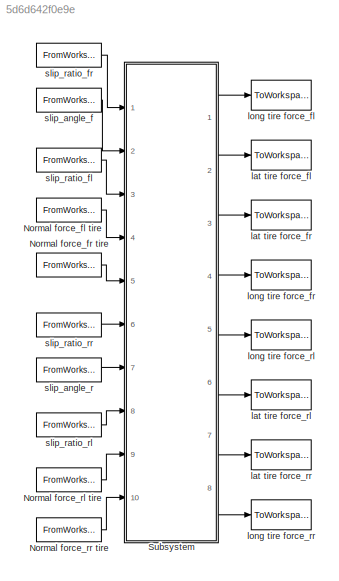
MODEL slx_5d6d642f0e9e
KIND model
CONFIG AbsTol = auto
CONFIG FixedStep = auto
CONFIG MaxStep = auto
CONFIG MinStep = auto
CONFIG RelTol = 1e-3
CONFIG SampleTimeConstraint = Unconstrained
CONFIG Solver = ode3
CONFIG SolverMode = Auto
CONFIG SolverName = ode3
CONFIG StartTime = 0
CONFIG StopTime = 5
BLOCK [FromWorkspace] Normal force_fl tire
  SampleTime = 0
  VariableName = Fz_fl
  ZeroCross = on
BLOCK [FromWorkspace] Normal force_fr tire
  SampleTime = 0
  VariableName = Fz_fr
  ZeroCross = on
BLOCK [FromWorkspace] Normal force_rl tire
  SampleTime = 0
  VariableName = Fz_rl
  ZeroCross = on
BLOCK [FromWorkspace] Normal force_rr tire
  SampleTime = 0
  VariableName = Fz_rr
  ZeroCross = on
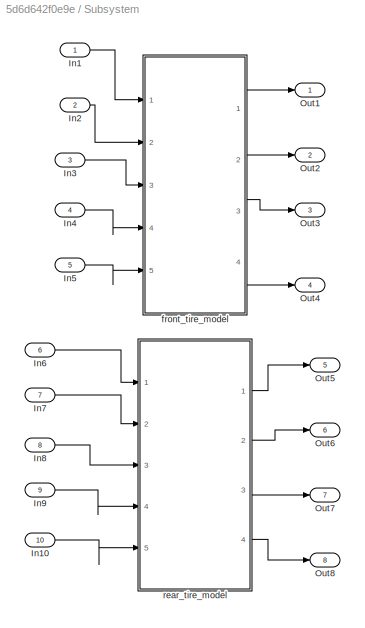
BLOCK [SubSystem] Subsystem
  Ports = [10, 8]
  RequestExecContextInheritance = off
BLOCK [Inport] Subsystem/In1
  IconDisplay = Port number
BLOCK [Inport] Subsystem/In10
  IconDisplay = Port number
  Port = 10
BLOCK [Inport] Subsystem/In2
  IconDisplay = Port number
  Port = 2
BLOCK [Inport] Subsystem/In3
  IconDisplay = Port number
  Port = 3
BLOCK [Inport] Subsystem/In4
  IconDisplay = Port number
  Port = 4
BLOCK [Inport] Subsystem/In5
  IconDisplay = Port number
  Port = 5
BLOCK [Inport] Subsystem/In6
  IconDisplay = Port number
  Port = 6
BLOCK [Inport] Subsystem/In7
  IconDisplay = Port number
  Port = 7
BLOCK [Inport] Subsystem/In8
  IconDisplay = Port number
  Port = 8
BLOCK [Inport] Subsystem/In9
  IconDisplay = Port number
  Port = 9
BLOCK [Outport] Subsystem/Out1
  IconDisplay = Port number
BLOCK [Outport] Subsystem/Out2
  IconDisplay = Port number
  Port = 2
BLOCK [Outport] Subsystem/Out3
  IconDisplay = Port number
  Port = 3
BLOCK [Outport] Subsystem/Out4
  IconDisplay = Port number
  Port = 4
BLOCK [Outport] Subsystem/Out5
  IconDisplay = Port number
  Port = 5
BLOCK [Outport] Subsystem/Out6
  IconDisplay = Port number
  Port = 6
BLOCK [Outport] Subsystem/Out7
  IconDisplay = Port number
  Port = 7
BLOCK [Outport] Subsystem/Out8
  IconDisplay = Port number
  Port = 8
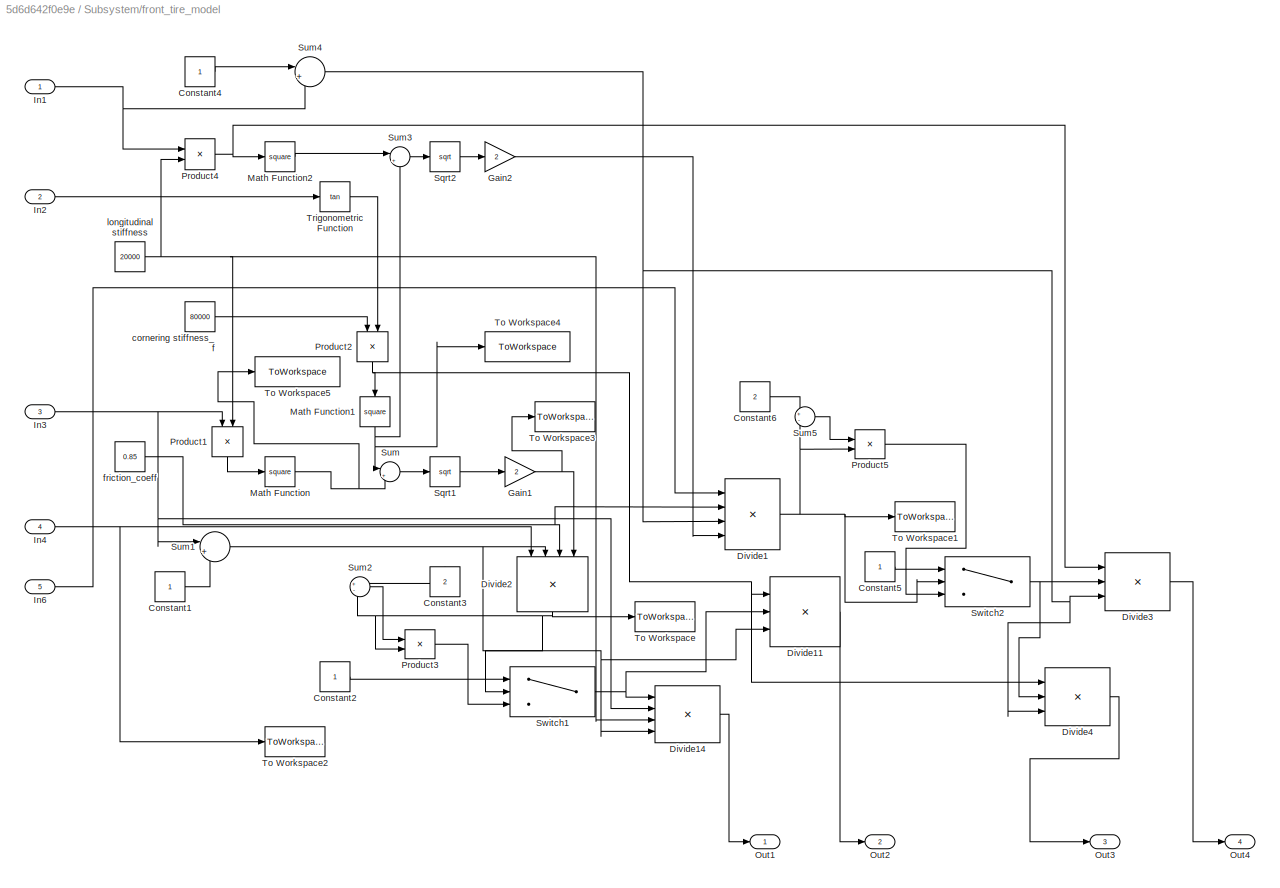
BLOCK [SubSystem] Subsystem/front_tire_model
  Ports = [5, 4]
  RequestExecContextInheritance = off
BLOCK [Constant] Subsystem/front_tire_model/Constant1
BLOCK [Constant] Subsystem/front_tire_model/Constant2
BLOCK [Constant] Subsystem/front_tire_model/Constant3
  Value = 2
BLOCK [Constant] Subsystem/front_tire_model/Constant4
BLOCK [Constant] Subsystem/front_tire_model/Constant5
BLOCK [Constant] Subsystem/front_tire_model/Constant6
  Value = 2
BLOCK [Product] Subsystem/front_tire_model/Divide1
  InputSameDT = off
  Inputs = ***/
  OutDataTypeStr = Inherit: Inherit via internal rule
  Ports = [4, 1]
  RndMeth = Floor
  SaturateOnIntegerOverflow = off
BLOCK [Product] Subsystem/front_tire_model/Divide11
  InputSameDT = off
  Inputs = **/
  OutDataTypeStr = Inherit: Inherit via internal rule
  Ports = [3, 1]
  RndMeth = Floor
  SaturateOnIntegerOverflow = off
BLOCK [Product] Subsystem/front_tire_model/Divide14
  InputSameDT = off
  Inputs = ***/
  OutDataTypeStr = Inherit: Inherit via internal rule
  Ports = [4, 1]
  RndMeth = Floor
  SaturateOnIntegerOverflow = off
BLOCK [Product] Subsystem/front_tire_model/Divide2
  InputSameDT = off
  Inputs = ***/
  OutDataTypeStr = Inherit: Inherit via internal rule
  Ports = [4, 1]
  RndMeth = Floor
  SaturateOnIntegerOverflow = off
BLOCK [Product] Subsystem/front_tire_model/Divide3
  InputSameDT = off
  Inputs = **/
  OutDataTypeStr = Inherit: Inherit via internal rule
  Ports = [3, 1]
  RndMeth = Floor
  SaturateOnIntegerOverflow = off
BLOCK [Product] Subsystem/front_tire_model/Divide4
  InputSameDT = off
  Inputs = **/
  OutDataTypeStr = Inherit: Inherit via internal rule
  Ports = [3, 1]
  RndMeth = Floor
  SaturateOnIntegerOverflow = off
BLOCK [Gain] Subsystem/front_tire_model/Gain1
  Gain = 2
  OutDataTypeStr = Inherit: Inherit via internal rule
  ParamDataTypeStr = Inherit: Inherit via internal rule
  SaturateOnIntegerOverflow = off
BLOCK [Gain] Subsystem/front_tire_model/Gain2
  Gain = 2
  OutDataTypeStr = Inherit: Inherit via internal rule
  ParamDataTypeStr = Inherit: Inherit via internal rule
  SaturateOnIntegerOverflow = off
BLOCK [Inport] Subsystem/front_tire_model/In1
  IconDisplay = Port number
BLOCK [Inport] Subsystem/front_tire_model/In2
  IconDisplay = Port number
  Port = 2
BLOCK [Inport] Subsystem/front_tire_model/In3
  IconDisplay = Port number
  Port = 3
BLOCK [Inport] Subsystem/front_tire_model/In4
  IconDisplay = Port number
  Port = 4
BLOCK [Inport] Subsystem/front_tire_model/In6
  IconDisplay = Port number
  Port = 5
BLOCK [Math] Subsystem/front_tire_model/Math Function
  Operator = square
  Ports = [1, 1]
BLOCK [Math] Subsystem/front_tire_model/Math Function1
  Operator = square
  Ports = [1, 1]
BLOCK [Math] Subsystem/front_tire_model/Math Function2
  Operator = square
  Ports = [1, 1]
BLOCK [Outport] Subsystem/front_tire_model/Out1
  IconDisplay = Port number
BLOCK [Outport] Subsystem/front_tire_model/Out2
  IconDisplay = Port number
  Port = 2
BLOCK [Outport] Subsystem/front_tire_model/Out3
  IconDisplay = Port number
  Port = 3
BLOCK [Outport] Subsystem/front_tire_model/Out4
  IconDisplay = Port number
  Port = 4
BLOCK [Product] Subsystem/front_tire_model/Product1
  InputSameDT = off
  OutDataTypeStr = Inherit: Inherit via internal rule
  Ports = [2, 1]
  RndMeth = Floor
  SaturateOnIntegerOverflow = off
BLOCK [Product] Subsystem/front_tire_model/Product2
  InputSameDT = off
  OutDataTypeStr = Inherit: Inherit via internal rule
  Ports = [2, 1]
  RndMeth = Floor
  SaturateOnIntegerOverflow = off
BLOCK [Product] Subsystem/front_tire_model/Product3
  InputSameDT = off
  OutDataTypeStr = Inherit: Inherit via internal rule
  Ports = [2, 1]
  RndMeth = Floor
  SaturateOnIntegerOverflow = off
BLOCK [Product] Subsystem/front_tire_model/Product4
  InputSameDT = off
  OutDataTypeStr = Inherit: Inherit via internal rule
  Ports = [2, 1]
  RndMeth = Floor
  SaturateOnIntegerOverflow = off
BLOCK [Product] Subsystem/front_tire_model/Product5
  InputSameDT = off
  OutDataTypeStr = Inherit: Inherit via internal rule
  Ports = [2, 1]
  RndMeth = Floor
  SaturateOnIntegerOverflow = off
BLOCK [Sqrt] Subsystem/front_tire_model/Sqrt1
BLOCK [Sqrt] Subsystem/front_tire_model/Sqrt2
BLOCK [Sum] Subsystem/front_tire_model/Sum
  IconShape = round
  InputSameDT = off
  Inputs = |++
  OutDataTypeStr = Inherit: Inherit via internal rule
  Ports = [2, 1]
  SaturateOnIntegerOverflow = off
BLOCK [Sum] Subsystem/front_tire_model/Sum1
  IconShape = round
  InputSameDT = off
  Inputs = |++
  OutDataTypeStr = Inherit: Inherit via internal rule
  Ports = [2, 1]
  SaturateOnIntegerOverflow = off
BLOCK [Sum] Subsystem/front_tire_model/Sum2
  IconShape = round
  InputSameDT = off
  Inputs = +-
  OutDataTypeStr = Inherit: Inherit via internal rule
  Ports = [2, 1]
  SaturateOnIntegerOverflow = off
BLOCK [Sum] Subsystem/front_tire_model/Sum3
  IconShape = round
  InputSameDT = off
  Inputs = |++
  OutDataTypeStr = Inherit: Inherit via internal rule
  Ports = [2, 1]
  SaturateOnIntegerOverflow = off
BLOCK [Sum] Subsystem/front_tire_model/Sum4
  IconShape = round
  InputSameDT = off
  Inputs = |++
  OutDataTypeStr = Inherit: Inherit via internal rule
  Ports = [2, 1]
  SaturateOnIntegerOverflow = off
BLOCK [Sum] Subsystem/front_tire_model/Sum5
  IconShape = round
  InputSameDT = off
  Inputs = +-
  OutDataTypeStr = Inherit: Inherit via internal rule
  Ports = [2, 1]
  SaturateOnIntegerOverflow = off
BLOCK [Switch] Subsystem/front_tire_model/Switch1
  InputSameDT = off
  SaturateOnIntegerOverflow = off
  Threshold = 1
BLOCK [Switch] Subsystem/front_tire_model/Switch2
  InputSameDT = off
  SaturateOnIntegerOverflow = off
  Threshold = 1
BLOCK [ToWorkspace] Subsystem/front_tire_model/To Workspace
  FixptAsFi = on
  MaxDataPoints = inf
  Ports = [1]
  SampleTime = -1
  Save2DSignal = 3-D array (concatenate along third dimension)
  SaveFormat = Timeseries
  VariableName = lambda_fl
BLOCK [ToWorkspace] Subsystem/front_tire_model/To Workspace1
  FixptAsFi = on
  MaxDataPoints = inf
  Ports = [1]
  SampleTime = -1
  Save2DSignal = 3-D array (concatenate along third dimension)
  SaveFormat = Timeseries
  VariableName = lambda_fr
BLOCK [ToWorkspace] Subsystem/front_tire_model/To Workspace2
  FixptAsFi = on
  MaxDataPoints = inf
  Ports = [1]
  SampleTime = -1
  Save2DSignal = 3-D array (concatenate along third dimension)
  SaveFormat = Timeseries
  VariableName = check_fzfl
BLOCK [ToWorkspace] Subsystem/front_tire_model/To Workspace3
  FixptAsFi = on
  MaxDataPoints = inf
  Ports = [1]
  SampleTime = -1
  Save2DSignal = 3-D array (concatenate along third dimension)
  SaveFormat = Timeseries
  VariableName = check_deno
BLOCK [ToWorkspace] Subsystem/front_tire_model/To Workspace4
  FixptAsFi = on
  MaxDataPoints = inf
  Ports = [1]
  SampleTime = -1
  Save2DSignal = 3-D array (concatenate along third dimension)
  SaveFormat = Timeseries
  VariableName = check_deno_st
BLOCK [ToWorkspace] Subsystem/front_tire_model/To Workspace5
  FixptAsFi = on
  MaxDataPoints = inf
  Ports = [1]
  SampleTime = -1
  Save2DSignal = 3-D array (concatenate along third dimension)
  SaveFormat = Timeseries
  VariableName = check_deno_ft
BLOCK [Trigonometry] Subsystem/front_tire_model/Trigonometric Function
  Operator = tan
  Ports = [1, 1]
BLOCK [Constant] Subsystem/front_tire_model/cornering stiffness_f
  Value = 80000
BLOCK [Constant] Subsystem/front_tire_model/friction_coeff
  Value = 0.85
BLOCK [Constant] Subsystem/front_tire_model/longitudinal stiffness
  Value = 20000
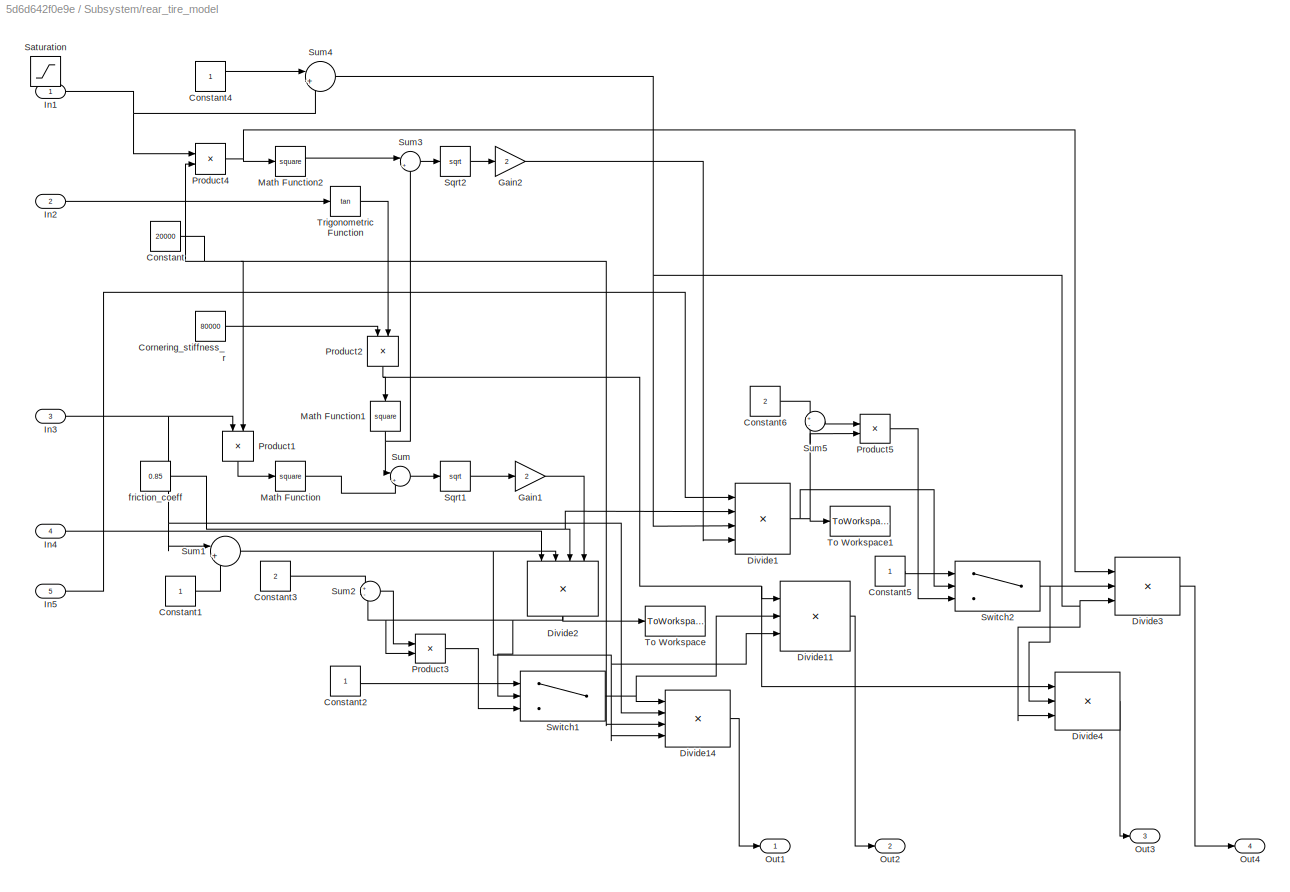
BLOCK [SubSystem] Subsystem/rear_tire_model
  Ports = [5, 4]
  RequestExecContextInheritance = off
BLOCK [Constant] Subsystem/rear_tire_model/Constant
  Value = 20000
BLOCK [Constant] Subsystem/rear_tire_model/Constant1
BLOCK [Constant] Subsystem/rear_tire_model/Constant2
BLOCK [Constant] Subsystem/rear_tire_model/Constant3
  Value = 2
BLOCK [Constant] Subsystem/rear_tire_model/Constant4
BLOCK [Constant] Subsystem/rear_tire_model/Constant5
BLOCK [Constant] Subsystem/rear_tire_model/Constant6
  Value = 2
BLOCK [Constant] Subsystem/rear_tire_model/Cornering_stiffness_r
  Value = 80000
BLOCK [Product] Subsystem/rear_tire_model/Divide1
  InputSameDT = off
  Inputs = ***/
  OutDataTypeStr = Inherit: Inherit via internal rule
  Ports = [4, 1]
  RndMeth = Floor
  SaturateOnIntegerOverflow = off
BLOCK [Product] Subsystem/rear_tire_model/Divide11
  InputSameDT = off
  Inputs = **/
  OutDataTypeStr = Inherit: Inherit via internal rule
  Ports = [3, 1]
  RndMeth = Floor
  SaturateOnIntegerOverflow = off
BLOCK [Product] Subsystem/rear_tire_model/Divide14
  InputSameDT = off
  Inputs = ***/
  OutDataTypeStr = Inherit: Inherit via internal rule
  Ports = [4, 1]
  RndMeth = Floor
  SaturateOnIntegerOverflow = off
BLOCK [Product] Subsystem/rear_tire_model/Divide2
  InputSameDT = off
  Inputs = ***/
  OutDataTypeStr = Inherit: Inherit via internal rule
  Ports = [4, 1]
  RndMeth = Floor
  SaturateOnIntegerOverflow = off
BLOCK [Product] Subsystem/rear_tire_model/Divide3
  InputSameDT = off
  Inputs = **/
  OutDataTypeStr = Inherit: Inherit via internal rule
  Ports = [3, 1]
  RndMeth = Floor
  SaturateOnIntegerOverflow = off
BLOCK [Product] Subsystem/rear_tire_model/Divide4
  InputSameDT = off
  Inputs = **/
  OutDataTypeStr = Inherit: Inherit via internal rule
  Ports = [3, 1]
  RndMeth = Floor
  SaturateOnIntegerOverflow = off
BLOCK [Gain] Subsystem/rear_tire_model/Gain1
  Gain = 2
  OutDataTypeStr = Inherit: Inherit via internal rule
  ParamDataTypeStr = Inherit: Inherit via internal rule
  SaturateOnIntegerOverflow = off
BLOCK [Gain] Subsystem/rear_tire_model/Gain2
  Gain = 2
  OutDataTypeStr = Inherit: Inherit via internal rule
  ParamDataTypeStr = Inherit: Inherit via internal rule
  SaturateOnIntegerOverflow = off
BLOCK [Inport] Subsystem/rear_tire_model/In1
  IconDisplay = Port number
BLOCK [Inport] Subsystem/rear_tire_model/In2
  IconDisplay = Port number
  Port = 2
BLOCK [Inport] Subsystem/rear_tire_model/In3
  IconDisplay = Port number
  Port = 3
BLOCK [Inport] Subsystem/rear_tire_model/In4
  IconDisplay = Port number
  Port = 4
BLOCK [Inport] Subsystem/rear_tire_model/In5
  IconDisplay = Port number
  Port = 5
BLOCK [Math] Subsystem/rear_tire_model/Math Function
  Operator = square
  Ports = [1, 1]
BLOCK [Math] Subsystem/rear_tire_model/Math Function1
  Operator = square
  Ports = [1, 1]
BLOCK [Math] Subsystem/rear_tire_model/Math Function2
  Operator = square
  Ports = [1, 1]
BLOCK [Outport] Subsystem/rear_tire_model/Out1
  IconDisplay = Port number
BLOCK [Outport] Subsystem/rear_tire_model/Out2
  IconDisplay = Port number
  Port = 2
BLOCK [Outport] Subsystem/rear_tire_model/Out3
  IconDisplay = Port number
  Port = 3
BLOCK [Outport] Subsystem/rear_tire_model/Out4
  IconDisplay = Port number
  Port = 4
BLOCK [Product] Subsystem/rear_tire_model/Product1
  InputSameDT = off
  OutDataTypeStr = Inherit: Inherit via internal rule
  Ports = [2, 1]
  RndMeth = Floor
  SaturateOnIntegerOverflow = off
BLOCK [Product] Subsystem/rear_tire_model/Product2
  InputSameDT = off
  OutDataTypeStr = Inherit: Inherit via internal rule
  Ports = [2, 1]
  RndMeth = Floor
  SaturateOnIntegerOverflow = off
BLOCK [Product] Subsystem/rear_tire_model/Product3
  InputSameDT = off
  OutDataTypeStr = Inherit: Inherit via internal rule
  Ports = [2, 1]
  RndMeth = Floor
  SaturateOnIntegerOverflow = off
BLOCK [Product] Subsystem/rear_tire_model/Product4
  InputSameDT = off
  OutDataTypeStr = Inherit: Inherit via internal rule
  Ports = [2, 1]
  RndMeth = Floor
  SaturateOnIntegerOverflow = off
BLOCK [Product] Subsystem/rear_tire_model/Product5
  InputSameDT = off
  OutDataTypeStr = Inherit: Inherit via internal rule
  Ports = [2, 1]
  RndMeth = Floor
  SaturateOnIntegerOverflow = off
BLOCK [Saturate] Subsystem/rear_tire_model/Saturation
  InputPortMap = u0
  LowerLimit = 0
  Ports = [1, 1]
  UpperLimit = 135
BLOCK [Sqrt] Subsystem/rear_tire_model/Sqrt1
BLOCK [Sqrt] Subsystem/rear_tire_model/Sqrt2
BLOCK [Sum] Subsystem/rear_tire_model/Sum
  IconShape = round
  InputSameDT = off
  Inputs = |++
  OutDataTypeStr = Inherit: Inherit via internal rule
  Ports = [2, 1]
  SaturateOnIntegerOverflow = off
BLOCK [Sum] Subsystem/rear_tire_model/Sum1
  IconShape = round
  InputSameDT = off
  Inputs = |++
  OutDataTypeStr = Inherit: Inherit via internal rule
  Ports = [2, 1]
  SaturateOnIntegerOverflow = off
BLOCK [Sum] Subsystem/rear_tire_model/Sum2
  IconShape = round
  InputSameDT = off
  Inputs = +-
  OutDataTypeStr = Inherit: Inherit via internal rule
  Ports = [2, 1]
  SaturateOnIntegerOverflow = off
BLOCK [Sum] Subsystem/rear_tire_model/Sum3
  IconShape = round
  InputSameDT = off
  Inputs = |++
  OutDataTypeStr = Inherit: Inherit via internal rule
  Ports = [2, 1]
  SaturateOnIntegerOverflow = off
BLOCK [Sum] Subsystem/rear_tire_model/Sum4
  IconShape = round
  InputSameDT = off
  Inputs = |++
  OutDataTypeStr = Inherit: Inherit via internal rule
  Ports = [2, 1]
  SaturateOnIntegerOverflow = off
BLOCK [Sum] Subsystem/rear_tire_model/Sum5
  IconShape = round
  InputSameDT = off
  Inputs = +-
  OutDataTypeStr = Inherit: Inherit via internal rule
  Ports = [2, 1]
  SaturateOnIntegerOverflow = off
BLOCK [Switch] Subsystem/rear_tire_model/Switch1
  InputSameDT = off
  SaturateOnIntegerOverflow = off
  Threshold = 1
BLOCK [Switch] Subsystem/rear_tire_model/Switch2
  InputSameDT = off
  SaturateOnIntegerOverflow = off
  Threshold = 1
BLOCK [ToWorkspace] Subsystem/rear_tire_model/To Workspace
  FixptAsFi = on
  MaxDataPoints = inf
  Ports = [1]
  SampleTime = -1
  Save2DSignal = 3-D array (concatenate along third dimension)
  SaveFormat = Timeseries
  VariableName = lambda_rl
BLOCK [ToWorkspace] Subsystem/rear_tire_model/To Workspace1
  FixptAsFi = on
  MaxDataPoints = inf
  Ports = [1]
  SampleTime = -1
  Save2DSignal = 3-D array (concatenate along third dimension)
  SaveFormat = Timeseries
  VariableName = lambda_rr
BLOCK [Trigonometry] Subsystem/rear_tire_model/Trigonometric Function
  Operator = tan
  Ports = [1, 1]
BLOCK [Constant] Subsystem/rear_tire_model/friction_coeff
  Value = 0.85
BLOCK [ToWorkspace] lat tire force_fl
  FixptAsFi = on
  MaxDataPoints = inf
  Ports = [1]
  SampleTime = -1
  Save2DSignal = 3-D array (concatenate along third dimension)
  SaveFormat = Timeseries
  VariableName = F_yfl
BLOCK [ToWorkspace] lat tire force_fr
  FixptAsFi = on
  MaxDataPoints = inf
  Ports = [1]
  SampleTime = -1
  Save2DSignal = 3-D array (concatenate along third dimension)
  SaveFormat = Timeseries
  VariableName = F_yfr
BLOCK [ToWorkspace] lat tire force_rl
  FixptAsFi = on
  MaxDataPoints = inf
  Ports = [1]
  SampleTime = -1
  Save2DSignal = 3-D array (concatenate along third dimension)
  SaveFormat = Timeseries
  VariableName = F_yrl
BLOCK [ToWorkspace] lat tire force_rr
  FixptAsFi = on
  MaxDataPoints = inf
  Ports = [1]
  SampleTime = -1
  Save2DSignal = 3-D array (concatenate along third dimension)
  SaveFormat = Timeseries
  VariableName = F_yrr
BLOCK [ToWorkspace] long tire force_fl
  FixptAsFi = on
  MaxDataPoints = inf
  Ports = [1]
  SampleTime = -1
  Save2DSignal = 3-D array (concatenate along third dimension)
  SaveFormat = Timeseries
  VariableName = F_xfl
BLOCK [ToWorkspace] long tire force_fr
  FixptAsFi = on
  MaxDataPoints = inf
  Ports = [1]
  SampleTime = -1
  Save2DSignal = 3-D array (concatenate along third dimension)
  SaveFormat = Timeseries
  VariableName = F_xfr
BLOCK [ToWorkspace] long tire force_rl
  FixptAsFi = on
  MaxDataPoints = inf
  Ports = [1]
  SampleTime = -1
  Save2DSignal = 3-D array (concatenate along third dimension)
  SaveFormat = Timeseries
  VariableName = F_xrl
BLOCK [ToWorkspace] long tire force_rr
  FixptAsFi = on
  MaxDataPoints = inf
  Ports = [1]
  SampleTime = -1
  Save2DSignal = 3-D array (concatenate along third dimension)
  SaveFormat = Timeseries
  VariableName = F_xrr
BLOCK [FromWorkspace] slip_angle_f
  SampleTime = 0
  VariableName = slip_angle_f
  ZeroCross = on
BLOCK [FromWorkspace] slip_angle_r
  SampleTime = 0
  VariableName = slip_angle_r
  ZeroCross = on
BLOCK [FromWorkspace] slip_ratio_fl
  SampleTime = 0
  VariableName = slip_ratio_fl
  ZeroCross = on
BLOCK [FromWorkspace] slip_ratio_fr
  SampleTime = 0
  VariableName = slip_ratio_fr
  ZeroCross = on
BLOCK [FromWorkspace] slip_ratio_rl
  SampleTime = 0
  VariableName = slip_ratio_rl
  ZeroCross = on
BLOCK [FromWorkspace] slip_ratio_rr
  SampleTime = 0
  VariableName = slip_ratio_rr
  ZeroCross = on
LINE Normal force_fl tire:1 -> Subsystem:4
LINE Normal force_fr tire:1 -> Subsystem:5
LINE Normal force_rl tire:1 -> Subsystem:9
LINE Normal force_rr tire:1 -> Subsystem:10
LINE Subsystem/In10:1 -> Subsystem/rear_tire_model:5
LINE Subsystem/In1:1 -> Subsystem/front_tire_model:1
LINE Subsystem/In2:1 -> Subsystem/front_tire_model:2
LINE Subsystem/In3:1 -> Subsystem/front_tire_model:3
LINE Subsystem/In4:1 -> Subsystem/front_tire_model:4
LINE Subsystem/In5:1 -> Subsystem/front_tire_model:5
LINE Subsystem/In6:1 -> Subsystem/rear_tire_model:1
LINE Subsystem/In7:1 -> Subsystem/rear_tire_model:2
LINE Subsystem/In8:1 -> Subsystem/rear_tire_model:3
LINE Subsystem/In9:1 -> Subsystem/rear_tire_model:4
LINE Subsystem/front_tire_model/Constant1:1 -> Subsystem/front_tire_model/Sum1:2
LINE Subsystem/front_tire_model/Constant2:1 -> Subsystem/front_tire_model/Switch1:1
LINE Subsystem/front_tire_model/Constant3:1 -> Subsystem/front_tire_model/Sum2:1
LINE Subsystem/front_tire_model/Constant4:1 -> Subsystem/front_tire_model/Sum4:1
LINE Subsystem/front_tire_model/Constant5:1 -> Subsystem/front_tire_model/Switch2:1
LINE Subsystem/front_tire_model/Constant6:1 -> Subsystem/front_tire_model/Sum5:1
LINE Subsystem/front_tire_model/Divide11:1 -> Subsystem/front_tire_model/Out2:1
LINE Subsystem/front_tire_model/Divide14:1 -> Subsystem/front_tire_model/Out1:1
NET Subsystem/front_tire_model/Divide1:1 -> Subsystem/front_tire_model/Product5:2, Subsystem/front_tire_model/Sum5:2, Subsystem/front_tire_model/Switch2:2, Subsystem/front_tire_model/To Workspace1:1
NET Subsystem/front_tire_model/Divide2:1 -> Subsystem/front_tire_model/Product3:2, Subsystem/front_tire_model/Sum2:2, Subsystem/front_tire_model/Switch1:2, Subsystem/front_tire_model/To Workspace:1
LINE Subsystem/front_tire_model/Divide3:1 -> Subsystem/front_tire_model/Out4:1
LINE Subsystem/front_tire_model/Divide4:1 -> Subsystem/front_tire_model/Out3:1
NET Subsystem/front_tire_model/Gain1:1 -> Subsystem/front_tire_model/Divide2:4, Subsystem/front_tire_model/To Workspace3:1
LINE Subsystem/front_tire_model/Gain2:1 -> Subsystem/front_tire_model/Divide1:4
NET Subsystem/front_tire_model/In1:1 -> Subsystem/front_tire_model/Product4:1, Subsystem/front_tire_model/Sum4:2
LINE Subsystem/front_tire_model/In2:1 -> Subsystem/front_tire_model/Trigonometric Function:1
NET Subsystem/front_tire_model/In3:1 -> Subsystem/front_tire_model/Divide14:2, Subsystem/front_tire_model/Product1:1, Subsystem/front_tire_model/Sum1:1
NET Subsystem/front_tire_model/In4:1 -> Subsystem/front_tire_model/Divide2:1, Subsystem/front_tire_model/To Workspace2:1
LINE Subsystem/front_tire_model/In6:1 -> Subsystem/front_tire_model/Divide1:1
NET Subsystem/front_tire_model/Math Function1:1 -> Subsystem/front_tire_model/Sum3:2, Subsystem/front_tire_model/Sum:1, Subsystem/front_tire_model/To Workspace4:1
LINE Subsystem/front_tire_model/Math Function2:1 -> Subsystem/front_tire_model/Sum3:1
NET Subsystem/front_tire_model/Math Function:1 -> Subsystem/front_tire_model/Sum:2, Subsystem/front_tire_model/To Workspace5:1
LINE Subsystem/front_tire_model/Product1:1 -> Subsystem/front_tire_model/Math Function:1
NET Subsystem/front_tire_model/Product2:1 -> Subsystem/front_tire_model/Divide11:1, Subsystem/front_tire_model/Divide4:1, Subsystem/front_tire_model/Math Function1:1
LINE Subsystem/front_tire_model/Product3:1 -> Subsystem/front_tire_model/Switch1:3
NET Subsystem/front_tire_model/Product4:1 -> Subsystem/front_tire_model/Divide3:1, Subsystem/front_tire_model/Math Function2:1
LINE Subsystem/front_tire_model/Product5:1 -> Subsystem/front_tire_model/Switch2:3
LINE Subsystem/front_tire_model/Sqrt1:1 -> Subsystem/front_tire_model/Gain1:1
LINE Subsystem/front_tire_model/Sqrt2:1 -> Subsystem/front_tire_model/Gain2:1
NET Subsystem/front_tire_model/Sum1:1 -> Subsystem/front_tire_model/Divide11:3, Subsystem/front_tire_model/Divide14:4, Subsystem/front_tire_model/Divide2:2
LINE Subsystem/front_tire_model/Sum2:1 -> Subsystem/front_tire_model/Product3:1
LINE Subsystem/front_tire_model/Sum3:1 -> Subsystem/front_tire_model/Sqrt2:1
NET Subsystem/front_tire_model/Sum4:1 -> Subsystem/front_tire_model/Divide1:3, Subsystem/front_tire_model/Divide3:3, Subsystem/front_tire_model/Divide4:3
LINE Subsystem/front_tire_model/Sum5:1 -> Subsystem/front_tire_model/Product5:1
LINE Subsystem/front_tire_model/Sum:1 -> Subsystem/front_tire_model/Sqrt1:1
NET Subsystem/front_tire_model/Switch1:1 -> Subsystem/front_tire_model/Divide11:2, Subsystem/front_tire_model/Divide14:1
NET Subsystem/front_tire_model/Switch2:1 -> Subsystem/front_tire_model/Divide3:2, Subsystem/front_tire_model/Divide4:2
LINE Subsystem/front_tire_model/Trigonometric Function:1 -> Subsystem/front_tire_model/Product2:2
LINE Subsystem/front_tire_model/cornering stiffness_f:1 -> Subsystem/front_tire_model/Product2:1
NET Subsystem/front_tire_model/friction_coeff:1 -> Subsystem/front_tire_model/Divide1:2, Subsystem/front_tire_model/Divide2:3
NET Subsystem/front_tire_model/longitudinal stiffness:1 -> Subsystem/front_tire_model/Divide14:3, Subsystem/front_tire_model/Product1:2, Subsystem/front_tire_model/Product4:2
LINE Subsystem/front_tire_model:1 -> Subsystem/Out1:1
LINE Subsystem/front_tire_model:2 -> Subsystem/Out2:1
LINE Subsystem/front_tire_model:3 -> Subsystem/Out3:1
LINE Subsystem/front_tire_model:4 -> Subsystem/Out4:1
LINE Subsystem/rear_tire_model/Constant1:1 -> Subsystem/rear_tire_model/Sum1:2
LINE Subsystem/rear_tire_model/Constant2:1 -> Subsystem/rear_tire_model/Switch1:1
LINE Subsystem/rear_tire_model/Constant3:1 -> Subsystem/rear_tire_model/Sum2:1
LINE Subsystem/rear_tire_model/Constant4:1 -> Subsystem/rear_tire_model/Sum4:1
LINE Subsystem/rear_tire_model/Constant5:1 -> Subsystem/rear_tire_model/Switch2:1
LINE Subsystem/rear_tire_model/Constant6:1 -> Subsystem/rear_tire_model/Sum5:1
NET Subsystem/rear_tire_model/Constant:1 -> Subsystem/rear_tire_model/Divide14:3, Subsystem/rear_tire_model/Product1:2, Subsystem/rear_tire_model/Product4:2
LINE Subsystem/rear_tire_model/Cornering_stiffness_r:1 -> Subsystem/rear_tire_model/Product2:1
LINE Subsystem/rear_tire_model/Divide11:1 -> Subsystem/rear_tire_model/Out2:1
LINE Subsystem/rear_tire_model/Divide14:1 -> Subsystem/rear_tire_model/Out1:1
NET Subsystem/rear_tire_model/Divide1:1 -> Subsystem/rear_tire_model/Product5:2, Subsystem/rear_tire_model/Sum5:2, Subsystem/rear_tire_model/Switch2:2, Subsystem/rear_tire_model/To Workspace1:1
NET Subsystem/rear_tire_model/Divide2:1 -> Subsystem/rear_tire_model/Product3:2, Subsystem/rear_tire_model/Sum2:2, Subsystem/rear_tire_model/Switch1:2, Subsystem/rear_tire_model/To Workspace:1
LINE Subsystem/rear_tire_model/Divide3:1 -> Subsystem/rear_tire_model/Out4:1
LINE Subsystem/rear_tire_model/Divide4:1 -> Subsystem/rear_tire_model/Out3:1
LINE Subsystem/rear_tire_model/Gain1:1 -> Subsystem/rear_tire_model/Divide2:4
LINE Subsystem/rear_tire_model/Gain2:1 -> Subsystem/rear_tire_model/Divide1:4
NET Subsystem/rear_tire_model/In1:1 -> Subsystem/rear_tire_model/Product4:1, Subsystem/rear_tire_model/Sum4:2
LINE Subsystem/rear_tire_model/In2:1 -> Subsystem/rear_tire_model/Trigonometric Function:1
NET Subsystem/rear_tire_model/In3:1 -> Subsystem/rear_tire_model/Divide14:2, Subsystem/rear_tire_model/Product1:1, Subsystem/rear_tire_model/Sum1:1
LINE Subsystem/rear_tire_model/In4:1 -> Subsystem/rear_tire_model/Divide2:1
LINE Subsystem/rear_tire_model/In5:1 -> Subsystem/rear_tire_model/Divide1:1
NET Subsystem/rear_tire_model/Math Function1:1 -> Subsystem/rear_tire_model/Sum3:2, Subsystem/rear_tire_model/Sum:1
LINE Subsystem/rear_tire_model/Math Function2:1 -> Subsystem/rear_tire_model/Sum3:1
LINE Subsystem/rear_tire_model/Math Function:1 -> Subsystem/rear_tire_model/Sum:2
LINE Subsystem/rear_tire_model/Product1:1 -> Subsystem/rear_tire_model/Math Function:1
NET Subsystem/rear_tire_model/Product2:1 -> Subsystem/rear_tire_model/Divide11:1, Subsystem/rear_tire_model/Divide4:1, Subsystem/rear_tire_model/Math Function1:1
LINE Subsystem/rear_tire_model/Product3:1 -> Subsystem/rear_tire_model/Switch1:3
NET Subsystem/rear_tire_model/Product4:1 -> Subsystem/rear_tire_model/Divide3:1, Subsystem/rear_tire_model/Math Function2:1
LINE Subsystem/rear_tire_model/Product5:1 -> Subsystem/rear_tire_model/Switch2:3
LINE Subsystem/rear_tire_model/Sqrt1:1 -> Subsystem/rear_tire_model/Gain1:1
LINE Subsystem/rear_tire_model/Sqrt2:1 -> Subsystem/rear_tire_model/Gain2:1
NET Subsystem/rear_tire_model/Sum1:1 -> Subsystem/rear_tire_model/Divide11:3, Subsystem/rear_tire_model/Divide14:4, Subsystem/rear_tire_model/Divide2:2
LINE Subsystem/rear_tire_model/Sum2:1 -> Subsystem/rear_tire_model/Product3:1
LINE Subsystem/rear_tire_model/Sum3:1 -> Subsystem/rear_tire_model/Sqrt2:1
NET Subsystem/rear_tire_model/Sum4:1 -> Subsystem/rear_tire_model/Divide1:3, Subsystem/rear_tire_model/Divide3:3, Subsystem/rear_tire_model/Divide4:3
LINE Subsystem/rear_tire_model/Sum5:1 -> Subsystem/rear_tire_model/Product5:1
LINE Subsystem/rear_tire_model/Sum:1 -> Subsystem/rear_tire_model/Sqrt1:1
NET Subsystem/rear_tire_model/Switch1:1 -> Subsystem/rear_tire_model/Divide11:2, Subsystem/rear_tire_model/Divide14:1
NET Subsystem/rear_tire_model/Switch2:1 -> Subsystem/rear_tire_model/Divide3:2, Subsystem/rear_tire_model/Divide4:2
LINE Subsystem/rear_tire_model/Trigonometric Function:1 -> Subsystem/rear_tire_model/Product2:2
NET Subsystem/rear_tire_model/friction_coeff:1 -> Subsystem/rear_tire_model/Divide1:2, Subsystem/rear_tire_model/Divide2:3
LINE Subsystem/rear_tire_model:1 -> Subsystem/Out5:1
LINE Subsystem/rear_tire_model:2 -> Subsystem/Out6:1
LINE Subsystem/rear_tire_model:3 -> Subsystem/Out7:1
LINE Subsystem/rear_tire_model:4 -> Subsystem/Out8:1
LINE Subsystem:1 -> long tire force_fl:1
LINE Subsystem:2 -> lat tire force_fl:1
LINE Subsystem:3 -> lat tire force_fr:1
LINE Subsystem:4 -> long tire force_fr:1
LINE Subsystem:5 -> long tire force_rl:1
LINE Subsystem:6 -> lat tire force_rl:1
LINE Subsystem:7 -> lat tire force_rr:1
LINE Subsystem:8 -> long tire force_rr:1
LINE slip_angle_f:1 -> Subsystem:2
LINE slip_angle_r:1 -> Subsystem:7
LINE slip_ratio_fl:1 -> Subsystem:3
LINE slip_ratio_fr:1 -> Subsystem:1
LINE slip_ratio_rl:1 -> Subsystem:8
LINE slip_ratio_rr:1 -> Subsystem:6
note: NET lines group one-source signal fan-out (src -> all destinations, sorted); 1:1 wires keep LINE
